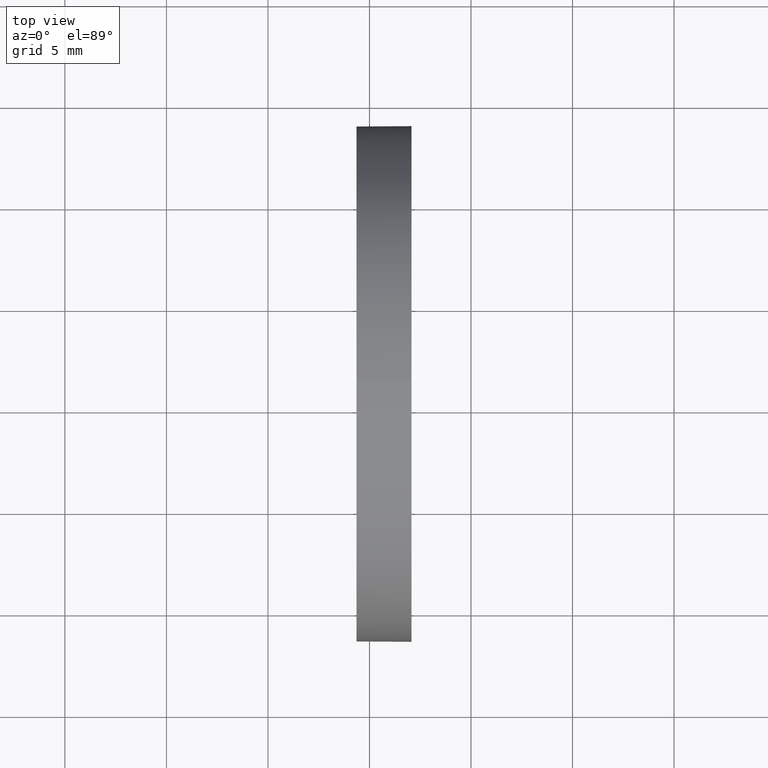
[diagram: clean part render]
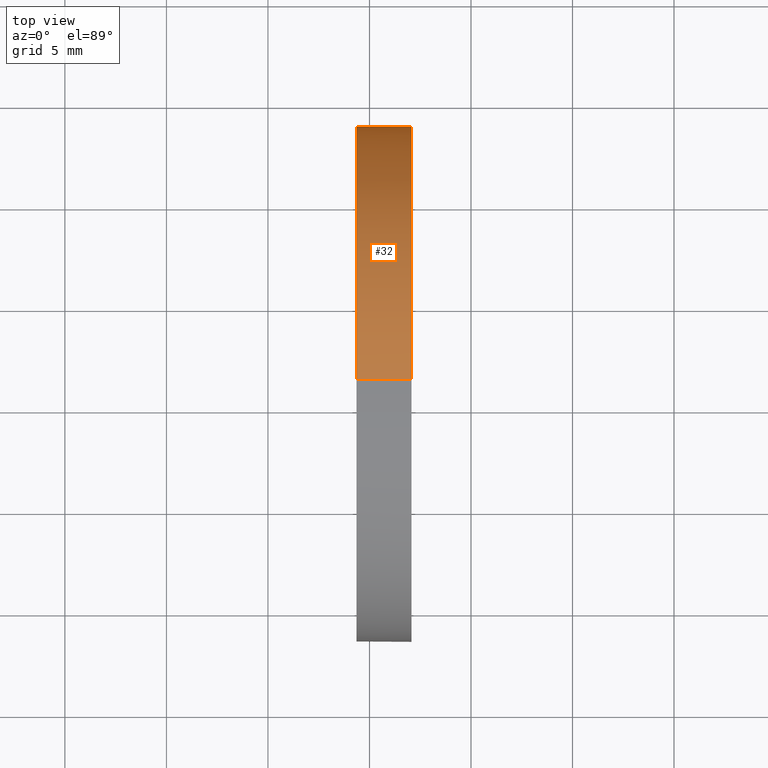
[diagram: same view with one face highlighted and labeled with its STEP entity id]
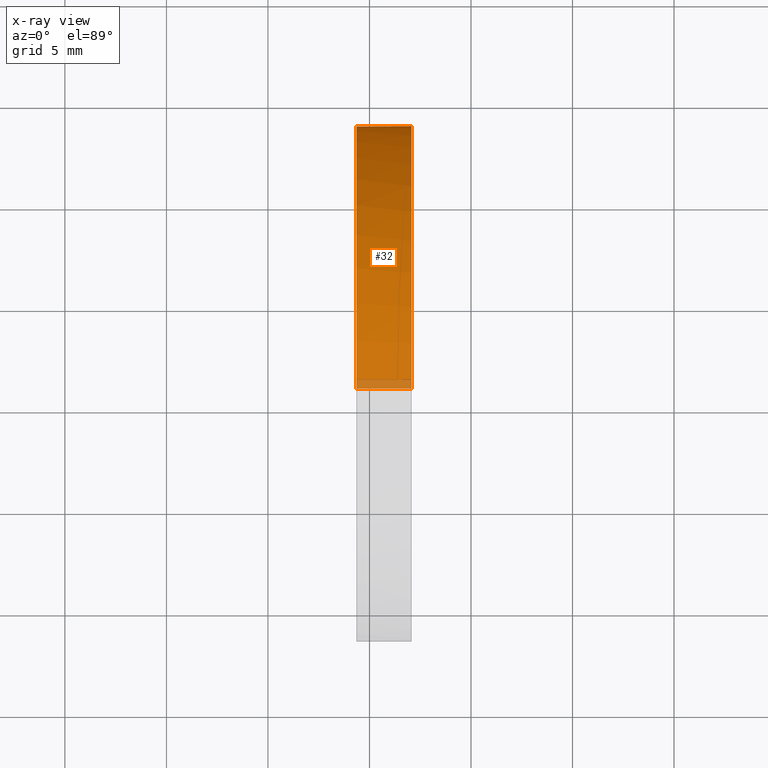
[diagram: x-ray of the same camera — body ghosted, the highlighted face saturated]
A machine part, top view. The second image highlights one B-rep face of the part: STEP entity #32.
The next image is the same camera in x-ray: the body ghosted, the highlighted face saturated — about 3% of this face is hidden behind the body in this view.
In plain terms, the highlighted cylindrical surface (partial cylindrical patch) has radius 12.7 mm, axis along (-1, -0, -0).
Its self-contained STEP definition (entity closure, byte-faithful):
#1 = CARTESIAN_POINT ( 'NONE',  ( 111.9552297575605700, 71.19398908659370300, 0.0000000000000000000 ) ) ;
#2 = DIRECTION ( 'NONE',  ( -1.000000000000000000, -0.0000000000000000000, -0.0000000000000000000 ) ) ;
#11 = EDGE_LOOP ( 'NONE', ( #39, #54, #65, #102, #119 ) ) ;
#14 = EDGE_CURVE ( 'NONE', #67, #37, #124, .T. ) ;
#16 = DIRECTION ( 'NONE',  ( -1.000000000000000000, -0.0000000000000000000, -0.0000000000000000000 ) ) ;
#18 = DIRECTION ( 'NONE',  ( 0.0000000000000000000, 0.0000000000000000000, 1.000000000000000000 ) ) ;
#22 = VERTEX_POINT ( 'NONE', #176 ) ;
#24 = CIRCLE ( 'NONE', #29, 12.69999999999997400 ) ;
#27 = VECTOR ( 'NONE', #16, 1000.000000000000000 ) ;
#29 = AXIS2_PLACEMENT_3D ( 'NONE', #81, #2, #95 ) ;
#30 = LINE ( 'NONE', #126, #97 ) ;
#32 = ADVANCED_FACE ( 'NONE', ( #51 ), #100, .T. ) ;
#33 = CARTESIAN_POINT ( 'NONE',  ( 119.3629307920347200, 71.19398908659370300, 0.0000000000000000000 ) ) ;
#37 = VERTEX_POINT ( 'NONE', #147 ) ;
#38 = LINE ( 'NONE', #57, #27 ) ;
#39 = ORIENTED_EDGE ( 'NONE', *, *, #43, .T. ) ;
#42 = DIRECTION ( 'NONE',  ( -1.000000000000000000, -0.0000000000000000000, -0.0000000000000000000 ) ) ;
#43 = EDGE_CURVE ( 'NONE', #37, #22, #24, .T. ) ;
#51 = FACE_OUTER_BOUND ( 'NONE', #11, .T. ) ;
#52 = CIRCLE ( 'NONE', #122, 12.70000000000000300 ) ;
#53 = AXIS2_PLACEMENT_3D ( 'NONE', #163, #55, #108 ) ;
#54 = ORIENTED_EDGE ( 'NONE', *, *, #93, .T. ) ;
#55 = DIRECTION ( 'NONE',  ( -1.000000000000000000, -0.0000000000000000000, -0.0000000000000000000 ) ) ;
#57 = CARTESIAN_POINT ( 'NONE',  ( 111.9552297575605700, 71.19398908659370300, -12.69999999999998900 ) ) ;
#65 = ORIENTED_EDGE ( 'NONE', *, *, #184, .F. ) ;
#67 = VERTEX_POINT ( 'NONE', #177 ) ;
#69 = AXIS2_PLACEMENT_3D ( 'NONE', #1, #42, #94 ) ;
#76 = EDGE_CURVE ( 'NONE', #67, #141, #30, .T. ) ;
#81 = CARTESIAN_POINT ( 'NONE',  ( 122.0686893645468100, 71.19398908659370300, 0.0000000000000000000 ) ) ;
#93 = EDGE_CURVE ( 'NONE', #22, #169, #38, .T. ) ;
#94 = DIRECTION ( 'NONE',  ( 0.0000000000000000000, 0.0000000000000000000, 1.000000000000000000 ) ) ;
#95 = DIRECTION ( 'NONE',  ( 0.0000000000000000000, 0.0000000000000000000, 1.000000000000000000 ) ) ;
#97 = VECTOR ( 'NONE', #99, 1000.000000000000000 ) ;
#99 = DIRECTION ( 'NONE',  ( -1.000000000000000000, -0.0000000000000000000, -0.0000000000000000000 ) ) ;
#100 = CYLINDRICAL_SURFACE ( 'NONE', #69, 12.69999999999998900 ) ;
#102 = ORIENTED_EDGE ( 'NONE', *, *, #76, .F. ) ;
#108 = DIRECTION ( 'NONE',  ( 0.0000000000000000000, 0.0000000000000000000, 1.000000000000000000 ) ) ;
#117 = DIRECTION ( 'NONE',  ( -1.000000000000000000, -0.0000000000000000000, -0.0000000000000000000 ) ) ;
#119 = ORIENTED_EDGE ( 'NONE', *, *, #14, .T. ) ;
#122 = AXIS2_PLACEMENT_3D ( 'NONE', #33, #117, #18 ) ;
#124 = CIRCLE ( 'NONE', #53, 12.69999999999997400 ) ;
#126 = CARTESIAN_POINT ( 'NONE',  ( 111.9552297575605700, 71.19398908659370300, 12.69999999999998900 ) ) ;
#141 = VERTEX_POINT ( 'NONE', #144 ) ;
#144 = CARTESIAN_POINT ( 'NONE',  ( 119.3629307920347200, 71.19398908659370300, 12.70000000000000300 ) ) ;
#147 = CARTESIAN_POINT ( 'NONE',  ( 122.0686893645468100, 83.89398908659373400, 1.555301434917139600E-015 ) ) ;
#152 = CARTESIAN_POINT ( 'NONE',  ( 119.3629307920347200, 71.19398908659370300, -12.70000000000000300 ) ) ;
#163 = CARTESIAN_POINT ( 'NONE',  ( 122.0686893645468100, 71.19398908659370300, 0.0000000000000000000 ) ) ;
#169 = VERTEX_POINT ( 'NONE', #152 ) ;
#176 = CARTESIAN_POINT ( 'NONE',  ( 122.0686893645468100, 71.19398908659370300, -12.69999999999997400 ) ) ;
#177 = CARTESIAN_POINT ( 'NONE',  ( 122.0686893645468100, 71.19398908659370300, 12.69999999999997400 ) ) ;
#184 = EDGE_CURVE ( 'NONE', #141, #169, #52, .T. ) ;